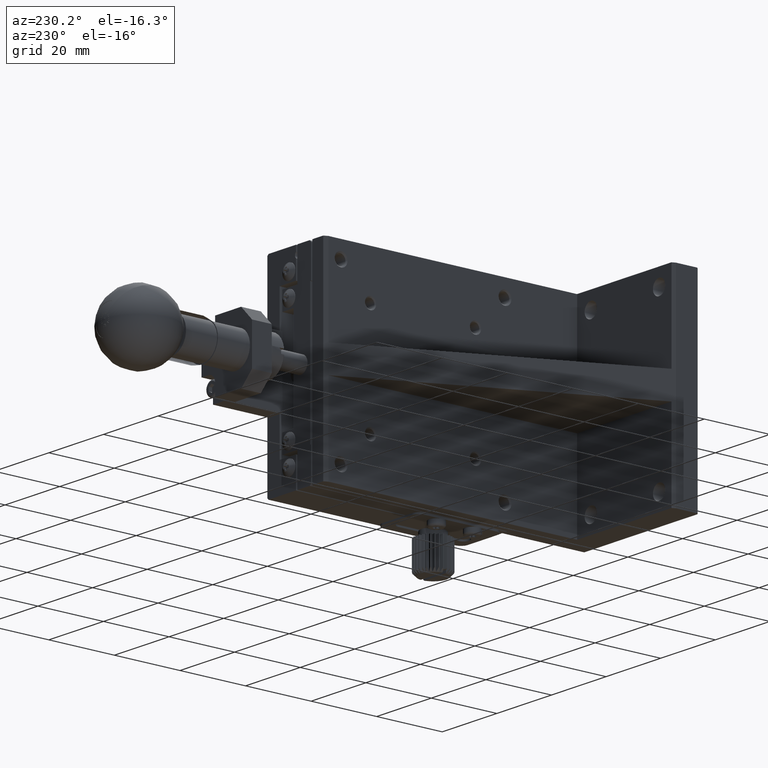
[diagram: clean part render]
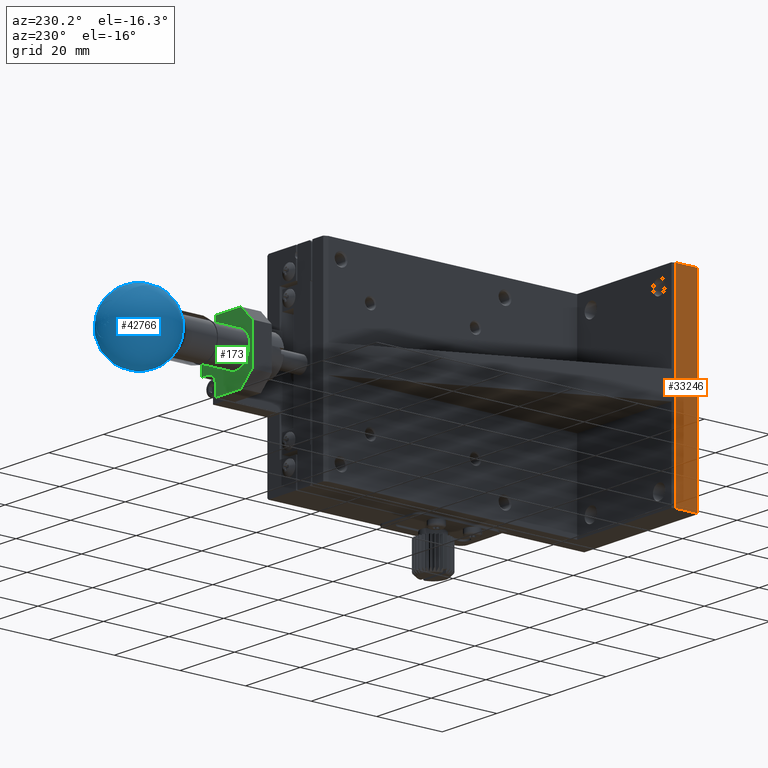
[diagram: same view with three faces highlighted in distinct colors, each labeled with its STEP entity id]
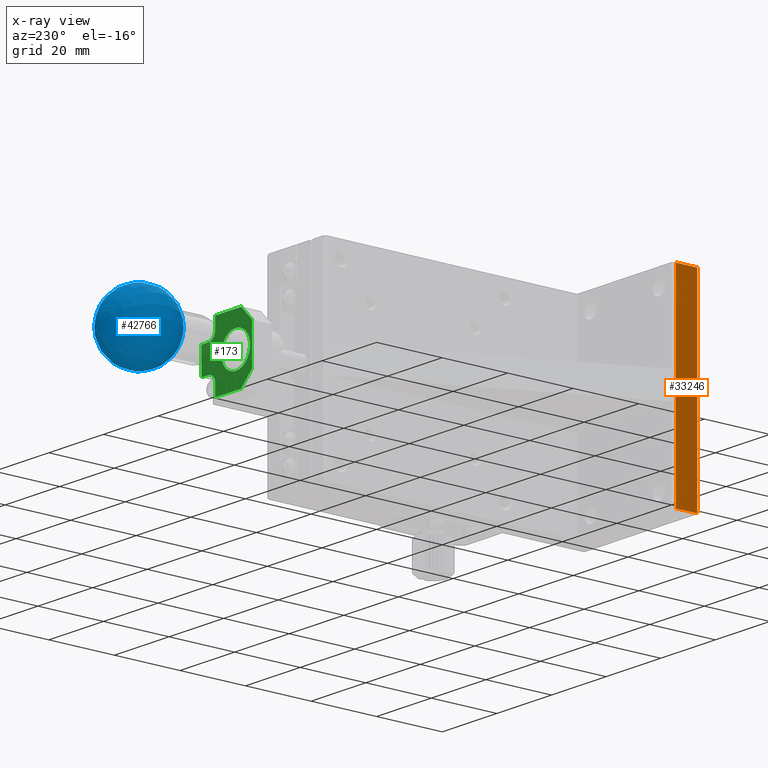
[diagram: x-ray of the same camera — body ghosted, the three highlighted faces saturated]
A machine part, auxiliary view with three faces highlighted in distinct colors.
The next image is the same camera in x-ray (body ghosted, the three faces saturated) — at least one of them is partly hidden behind the body in this view.
Their STEP definitions:

[orange] entity #33246 — the highlighted planar face has unit normal (-1, 0, 0).
#1277 = VERTEX_POINT ( 'NONE', #55278 ) ;
#3331 = VECTOR ( 'NONE', #21318, 1000.000000000000000 ) ;
#7493 = CARTESIAN_POINT ( 'NONE',  ( -42.00000000000000000, 0.4999999999999998890, 0.000000000000000000 ) ) ;
#8600 = DIRECTION ( 'NONE',  ( -1.000000000000000000, 0.000000000000000000, 0.000000000000000000 ) ) ;
#12276 = CARTESIAN_POINT ( 'NONE',  ( -42.00000000000000000, 0.4999999999999998890, -60.00000000000000000 ) ) ;
#16839 = VERTEX_POINT ( 'NONE', #7493 ) ;
#18231 = DIRECTION ( 'NONE',  ( -0.000000000000000000, -0.000000000000000000, -1.000000000000000000 ) ) ;
#20847 = LINE ( 'NONE', #49560, #3331 ) ;
#21318 = DIRECTION ( 'NONE',  ( 0.000000000000000000, -1.000000000000000000, -0.000000000000000000 ) ) ;
#24822 = FACE_OUTER_BOUND ( 'NONE', #83443, .T. ) ;
#25368 = CARTESIAN_POINT ( 'NONE',  ( -42.00000000000000000, 0.4999999999999995559, -60.00000000000000000 ) ) ;
#31090 = PLANE ( 'NONE',  #31826 ) ;
#31202 = CARTESIAN_POINT ( 'NONE',  ( -42.00000000000000000, 7.000000000000009770, -60.00000000000000000 ) ) ;
#31826 = AXIS2_PLACEMENT_3D ( 'NONE', #45888, #8600, #46841 ) ;
#32582 = LINE ( 'NONE', #25368, #79600 ) ;
#33246 = ADVANCED_FACE ( 'NONE', ( #24822 ), #31090, .T. ) ;
#34978 = ORIENTED_EDGE ( 'NONE', *, *, #50814, .T. ) ;
#37185 = VECTOR ( 'NONE', #18231, 1000.000000000000000 ) ;
#37995 = EDGE_CURVE ( 'NONE', #79551, #16839, #91141, .T. ) ;
#45888 = CARTESIAN_POINT ( 'NONE',  ( -42.00000000000000000, 7.000000000000000000, -60.00000000000000000 ) ) ;
#46789 = VERTEX_POINT ( 'NONE', #12276 ) ;
#46841 = DIRECTION ( 'NONE',  ( 0.000000000000000000, 0.000000000000000000, 1.000000000000000000 ) ) ;
#49431 = CARTESIAN_POINT ( 'NONE',  ( -42.00000000000000000, 0.000000000000000000, 0.000000000000000000 ) ) ;
#49560 = CARTESIAN_POINT ( 'NONE',  ( -42.00000000000000000, 0.000000000000000000, -60.00000000000000000 ) ) ;
#50814 = EDGE_CURVE ( 'NONE', #1277, #46789, #20847, .T. ) ;
#54919 = ORIENTED_EDGE ( 'NONE', *, *, #90710, .T. ) ;
#55278 = CARTESIAN_POINT ( 'NONE',  ( -42.00000000000000711, 6.999999999999997335, -60.00000000000000000 ) ) ;
#59095 = EDGE_CURVE ( 'NONE', #79551, #1277, #69032, .T. ) ;
#69032 = LINE ( 'NONE', #31202, #37185 ) ;
#79551 = VERTEX_POINT ( 'NONE', #90755 ) ;
#79600 = VECTOR ( 'NONE', #83823, 1000.000000000000000 ) ;
#82948 = ORIENTED_EDGE ( 'NONE', *, *, #37995, .F. ) ;
#83443 = EDGE_LOOP ( 'NONE', ( #34978, #54919, #82948, #84392 ) ) ;
#83823 = DIRECTION ( 'NONE',  ( 0.000000000000000000, 0.000000000000000000, 1.000000000000000000 ) ) ;
#83996 = VECTOR ( 'NONE', #84440, 1000.000000000000000 ) ;
#84392 = ORIENTED_EDGE ( 'NONE', *, *, #59095, .T. ) ;
#84440 = DIRECTION ( 'NONE',  ( 0.000000000000000000, -1.000000000000000000, -0.000000000000000000 ) ) ;
#90710 = EDGE_CURVE ( 'NONE', #46789, #16839, #32582, .T. ) ;
#90755 = CARTESIAN_POINT ( 'NONE',  ( -42.00000000000000711, 6.999999999999997335, 0.000000000000000000 ) ) ;
#91141 = LINE ( 'NONE', #49431, #83996 ) ;

[blue] entity #42766 — the highlighted toroidal blend (fillet) surface has major radius 0.0172 mm and minor (blend) radius 10.5 mm.
#2119 = DIRECTION ( 'NONE',  ( 0.5469441386039886055, -1.632465287660688244E-16, -0.8371691043312222691 ) ) ;
#9081 = VERTEX_POINT ( 'NONE', #38259 ) ;
#25922 = CARTESIAN_POINT ( 'NONE',  ( 0.9999999999999991118, 144.5019999999908009, -30.00000000000000711 ) ) ;
#29088 = FACE_OUTER_BOUND ( 'NONE', #68355, .T. ) ;
#30840 = CARTESIAN_POINT ( 'NONE',  ( 1.000000000000002665, 135.0070141337803022, -30.00000000000001066 ) ) ;
#38259 = CARTESIAN_POINT ( 'NONE',  ( 3.461248623717947837, 144.5019999999908009, -33.76726096949050770 ) ) ;
#42766 = ADVANCED_FACE ( 'NONE', ( #29088 ), #78119, .T. ) ;
#49660 = DIRECTION ( 'NONE',  ( -3.321202459121410343E-17, -1.000000000000000000, 1.733000009605370070E-16 ) ) ;
#53090 = CIRCLE ( 'NONE', #89803, 4.500000000000002665 ) ;
#53605 = AXIS2_PLACEMENT_3D ( 'NONE', #30840, #49660, #2119 ) ;
#68355 = EDGE_LOOP ( 'NONE', ( #94034 ) ) ;
#78119 = TOROIDAL_SURFACE ( 'NONE', #53605, 0.01722815654599730087, 10.50000000000000000 ) ;
#79681 = EDGE_CURVE ( 'NONE', #9081, #9081, #53090, .T. ) ;
#83890 = DIRECTION ( 'NONE',  ( 0.5469441386039882724, 0.000000000000000000, -0.8371691043312224911 ) ) ;
#89803 = AXIS2_PLACEMENT_3D ( 'NONE', #25922, #91068, #83890 ) ;
#91068 = DIRECTION ( 'NONE',  ( -3.321202459121410343E-17, -1.000000000000000000, 1.733000009605370070E-16 ) ) ;
#94034 = ORIENTED_EDGE ( 'NONE', *, *, #79681, .F. ) ;

[green] entity #173 — the highlighted planar face has unit normal (0, 1, 0).
#173 = ADVANCED_FACE ( 'NONE', ( #56917, #13807 ), #36285, .T. ) ;
#421 = CARTESIAN_POINT ( 'NONE',  ( 13.50000000000000000, 105.5000000000000142, -40.00000000000000000 ) ) ;
#1907 = CARTESIAN_POINT ( 'NONE',  ( 8.500000000000000000, 105.5000000000000142, -20.00000000000000000 ) ) ;
#2669 = ORIENTED_EDGE ( 'NONE', *, *, #51476, .T. ) ;
#4549 = LINE ( 'NONE', #33239, #22432 ) ;
#4972 = ORIENTED_EDGE ( 'NONE', *, *, #55019, .T. ) ;
#5382 = ORIENTED_EDGE ( 'NONE', *, *, #77220, .T. ) ;
#5433 = DIRECTION ( 'NONE',  ( 1.000000000000000000, 0.000000000000000000, -0.000000000000000000 ) ) ;
#5699 = DIRECTION ( 'NONE',  ( 0.000000000000000000, -0.000000000000000000, 1.000000000000000000 ) ) ;
#7111 = CARTESIAN_POINT ( 'NONE',  ( 14.00000000000000000, 105.5000000000000142, 0.000000000000000000 ) ) ;
#7972 = EDGE_LOOP ( 'NONE', ( #84504 ) ) ;
#8028 = CIRCLE ( 'NONE', #18718, 5.250000000000000888 ) ;
#8203 = VERTEX_POINT ( 'NONE', #62716 ) ;
#8296 = VERTEX_POINT ( 'NONE', #60237 ) ;
#9123 = ORIENTED_EDGE ( 'NONE', *, *, #77864, .T. ) ;
#9208 = VERTEX_POINT ( 'NONE', #43134 ) ;
#9523 = VECTOR ( 'NONE', #85266, 1000.000000000000000 ) ;
#10360 = EDGE_CURVE ( 'NONE', #74810, #74810, #8028, .T. ) ;
#10906 = VECTOR ( 'NONE', #49239, 1000.000000000000114 ) ;
#11033 = VECTOR ( 'NONE', #5433, 1000.000000000000000 ) ;
#11561 = EDGE_CURVE ( 'NONE', #90586, #46992, #90121, .T. ) ;
#12142 = ORIENTED_EDGE ( 'NONE', *, *, #11561, .T. ) ;
#13070 = ORIENTED_EDGE ( 'NONE', *, *, #75066, .T. ) ;
#13077 = LINE ( 'NONE', #71038, #11033 ) ;
#13298 = DIRECTION ( 'NONE',  ( -1.000000000000000000, -0.000000000000000000, 0.000000000000000000 ) ) ;
#13807 = FACE_BOUND ( 'NONE', #7972, .T. ) ;
#14716 = VERTEX_POINT ( 'NONE', #78003 ) ;
#15171 = DIRECTION ( 'NONE',  ( -1.000000000000000000, -0.000000000000000000, 0.000000000000000000 ) ) ;
#17169 = CIRCLE ( 'NONE', #61563, 2.500000000000002220 ) ;
#17396 = VERTEX_POINT ( 'NONE', #1907 ) ;
#18240 = CARTESIAN_POINT ( 'NONE',  ( -0.9999999999999991118, 105.5000000000000142, -40.00000000000000000 ) ) ;
#18363 = ORIENTED_EDGE ( 'NONE', *, *, #25969, .T. ) ;
#18718 = AXIS2_PLACEMENT_3D ( 'NONE', #39568, #68813, #89855 ) ;
#20670 = VERTEX_POINT ( 'NONE', #39304 ) ;
#21992 = CARTESIAN_POINT ( 'NONE',  ( -0.9999999999999974465, 105.5000000000000142, -20.00000000000000355 ) ) ;
#22432 = VECTOR ( 'NONE', #33728, 1000.000000000000000 ) ;
#22546 = AXIS2_PLACEMENT_3D ( 'NONE', #36562, #64890, #94078 ) ;
#22939 = CARTESIAN_POINT ( 'NONE',  ( 11.00000000000000000, 105.5000000000000142, -26.00000000000000355 ) ) ;
#25969 = EDGE_CURVE ( 'NONE', #8203, #14716, #57876, .T. ) ;
#27178 = LINE ( 'NONE', #87009, #49964 ) ;
#28653 = CARTESIAN_POINT ( 'NONE',  ( 8.500000000000000000, 105.5000000000000142, 0.000000000000000000 ) ) ;
#28655 = DIRECTION ( 'NONE',  ( 0.000000000000000000, 1.000000000000000000, 0.000000000000000000 ) ) ;
#29226 = DIRECTION ( 'NONE',  ( -0.000000000000000000, -1.000000000000000000, -0.000000000000000000 ) ) ;
#31436 = ORIENTED_EDGE ( 'NONE', *, *, #54937, .T. ) ;
#33239 = CARTESIAN_POINT ( 'NONE',  ( 8.500000000000000000, 105.5000000000000142, 0.000000000000000000 ) ) ;
#33728 = DIRECTION ( 'NONE',  ( -0.000000000000000000, 0.000000000000000000, -1.000000000000000000 ) ) ;
#35271 = DIRECTION ( 'NONE',  ( 1.000000000000000000, -0.000000000000000000, 0.000000000000000000 ) ) ;
#35900 = DIRECTION ( 'NONE',  ( 0.000000000000000000, 0.000000000000000000, 1.000000000000000000 ) ) ;
#36285 = PLANE ( 'NONE',  #46045 ) ;
#36562 = CARTESIAN_POINT ( 'NONE',  ( 11.00000000000000000, 105.5000000000000142, -23.50000000000000000 ) ) ;
#38063 = CARTESIAN_POINT ( 'NONE',  ( -4.999999999999999112, 105.5000000000000142, -24.00000000000000000 ) ) ;
#39304 = CARTESIAN_POINT ( 'NONE',  ( -5.000000000000002665, 105.5000000000000142, -36.00000000000001421 ) ) ;
#39568 = CARTESIAN_POINT ( 'NONE',  ( 0.9999999999999991118, 105.5000000000000142, -30.00000000000000000 ) ) ;
#40147 = LINE ( 'NONE', #82804, #66050 ) ;
#40385 = VERTEX_POINT ( 'NONE', #21992 ) ;
#40586 = EDGE_CURVE ( 'NONE', #46992, #52772, #94217, .T. ) ;
#43134 = CARTESIAN_POINT ( 'NONE',  ( 8.500000000000000000, 105.5000000000000142, -23.50000000000000000 ) ) ;
#43902 = LINE ( 'NONE', #421, #44644 ) ;
#44644 = VECTOR ( 'NONE', #15171, 1000.000000000000000 ) ;
#45264 = EDGE_CURVE ( 'NONE', #88825, #40385, #63171, .T. ) ;
#46045 = AXIS2_PLACEMENT_3D ( 'NONE', #7111, #28655, #5699 ) ;
#46992 = VERTEX_POINT ( 'NONE', #59005 ) ;
#47005 = DIRECTION ( 'NONE',  ( -0.000000000000000000, -0.000000000000000000, -1.000000000000000000 ) ) ;
#49239 = DIRECTION ( 'NONE',  ( 0.7071067811865474617, 0.000000000000000000, 0.7071067811865474617 ) ) ;
#49662 = CARTESIAN_POINT ( 'NONE',  ( 14.00000000000000000, 105.5000000000000142, -34.00000000000000000 ) ) ;
#49964 = VECTOR ( 'NONE', #35271, 1000.000000000000000 ) ;
#50174 = DIRECTION ( 'NONE',  ( -0.000000000000000000, 0.000000000000000000, -1.000000000000000000 ) ) ;
#51117 = ORIENTED_EDGE ( 'NONE', *, *, #54111, .T. ) ;
#51476 = EDGE_CURVE ( 'NONE', #20670, #88825, #40147, .T. ) ;
#52772 = VERTEX_POINT ( 'NONE', #86912 ) ;
#54111 = EDGE_CURVE ( 'NONE', #14716, #8296, #43902, .T. ) ;
#54666 = EDGE_CURVE ( 'NONE', #58489, #90586, #13077, .T. ) ;
#54937 = EDGE_CURVE ( 'NONE', #8296, #20670, #78099, .T. ) ;
#55019 = EDGE_CURVE ( 'NONE', #52772, #8203, #17169, .T. ) ;
#56917 = FACE_OUTER_BOUND ( 'NONE', #74326, .T. ) ;
#57876 = LINE ( 'NONE', #28653, #62118 ) ;
#58489 = VERTEX_POINT ( 'NONE', #22939 ) ;
#59005 = CARTESIAN_POINT ( 'NONE',  ( 13.50000000000000000, 105.5000000000000142, -34.00000000000000000 ) ) ;
#60237 = CARTESIAN_POINT ( 'NONE',  ( -0.9999999999999991118, 105.5000000000000142, -40.00000000000000000 ) ) ;
#61563 = AXIS2_PLACEMENT_3D ( 'NONE', #80470, #29226, #35900 ) ;
#61734 = DIRECTION ( 'NONE',  ( 0.000000000000000000, -0.000000000000000000, 1.000000000000000000 ) ) ;
#62118 = VECTOR ( 'NONE', #50174, 1000.000000000000000 ) ;
#62132 = ORIENTED_EDGE ( 'NONE', *, *, #45264, .T. ) ;
#62242 = ORIENTED_EDGE ( 'NONE', *, *, #54666, .T. ) ;
#62716 = CARTESIAN_POINT ( 'NONE',  ( 8.500000000000000000, 105.5000000000000142, -36.50000000000000000 ) ) ;
#63171 = LINE ( 'NONE', #64598, #10906 ) ;
#64598 = CARTESIAN_POINT ( 'NONE',  ( -4.999999999999999112, 105.5000000000000142, -24.00000000000000000 ) ) ;
#64890 = DIRECTION ( 'NONE',  ( -0.000000000000000000, -1.000000000000000000, -0.000000000000000000 ) ) ;
#66050 = VECTOR ( 'NONE', #61734, 1000.000000000000000 ) ;
#66815 = ORIENTED_EDGE ( 'NONE', *, *, #40586, .T. ) ;
#68813 = DIRECTION ( 'NONE',  ( -0.000000000000000000, -1.000000000000000000, -0.000000000000000000 ) ) ;
#71038 = CARTESIAN_POINT ( 'NONE',  ( 14.00000000000000000, 105.5000000000000142, -26.00000000000000355 ) ) ;
#74326 = EDGE_LOOP ( 'NONE', ( #66815, #4972, #18363, #51117, #31436, #2669, #62132, #5382, #9123, #13070, #62242, #12142 ) ) ;
#74810 = VERTEX_POINT ( 'NONE', #81073 ) ;
#75066 = EDGE_CURVE ( 'NONE', #9208, #58489, #82212, .T. ) ;
#77220 = EDGE_CURVE ( 'NONE', #40385, #17396, #27178, .T. ) ;
#77864 = EDGE_CURVE ( 'NONE', #17396, #9208, #4549, .T. ) ;
#78003 = CARTESIAN_POINT ( 'NONE',  ( 8.500000000000000000, 105.5000000000000142, -40.00000000000000000 ) ) ;
#78099 = LINE ( 'NONE', #18240, #9523 ) ;
#80089 = CARTESIAN_POINT ( 'NONE',  ( 13.50000000000000000, 105.5000000000000142, -26.00000000000000711 ) ) ;
#80470 = CARTESIAN_POINT ( 'NONE',  ( 11.00000000000000000, 105.5000000000000142, -36.50000000000000000 ) ) ;
#81073 = CARTESIAN_POINT ( 'NONE',  ( 0.9999999999999991118, 105.5000000000000142, -24.74999999999999645 ) ) ;
#82212 = CIRCLE ( 'NONE', #22546, 2.499999999999998668 ) ;
#82804 = CARTESIAN_POINT ( 'NONE',  ( -4.999999999999999112, 105.5000000000000142, 0.000000000000000000 ) ) ;
#84504 = ORIENTED_EDGE ( 'NONE', *, *, #10360, .T. ) ;
#85266 = DIRECTION ( 'NONE',  ( -0.7071067811865479058, 0.000000000000000000, 0.7071067811865472397 ) ) ;
#86912 = CARTESIAN_POINT ( 'NONE',  ( 11.00000000000000000, 105.5000000000000142, -34.00000000000000000 ) ) ;
#87009 = CARTESIAN_POINT ( 'NONE',  ( -0.9999999999999991118, 105.5000000000000142, -20.00000000000000000 ) ) ;
#87589 = VECTOR ( 'NONE', #47005, 1000.000000000000000 ) ;
#88708 = VECTOR ( 'NONE', #13298, 1000.000000000000000 ) ;
#88825 = VERTEX_POINT ( 'NONE', #38063 ) ;
#89855 = DIRECTION ( 'NONE',  ( 0.000000000000000000, 0.000000000000000000, 1.000000000000000000 ) ) ;
#90121 = LINE ( 'NONE', #91078, #87589 ) ;
#90586 = VERTEX_POINT ( 'NONE', #80089 ) ;
#91078 = CARTESIAN_POINT ( 'NONE',  ( 13.50000000000000000, 105.5000000000000142, -20.00000000000000000 ) ) ;
#94078 = DIRECTION ( 'NONE',  ( 0.000000000000000000, 0.000000000000000000, 1.000000000000000000 ) ) ;
#94217 = LINE ( 'NONE', #49662, #88708 ) ;